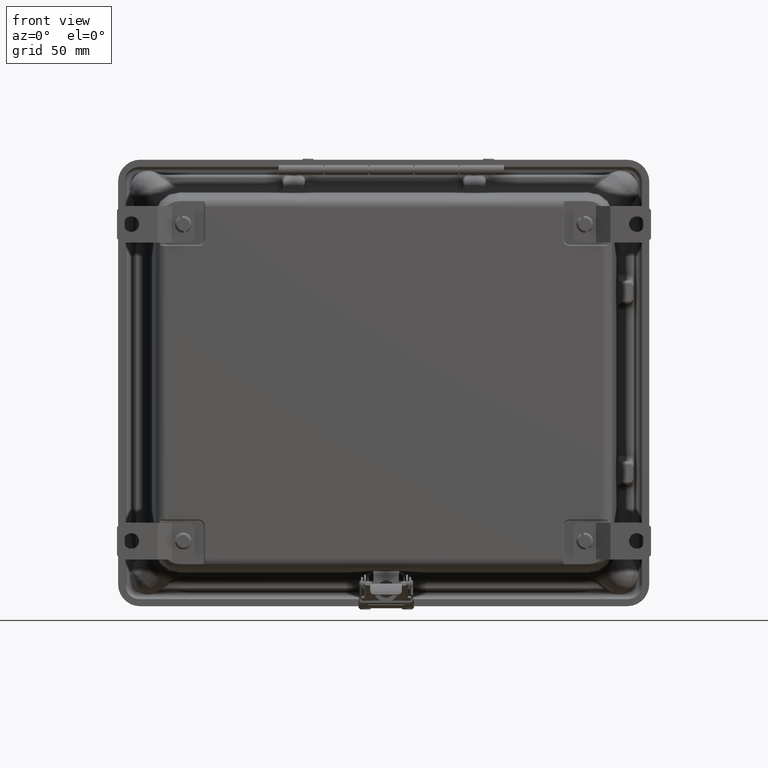
[diagram: clean part render]
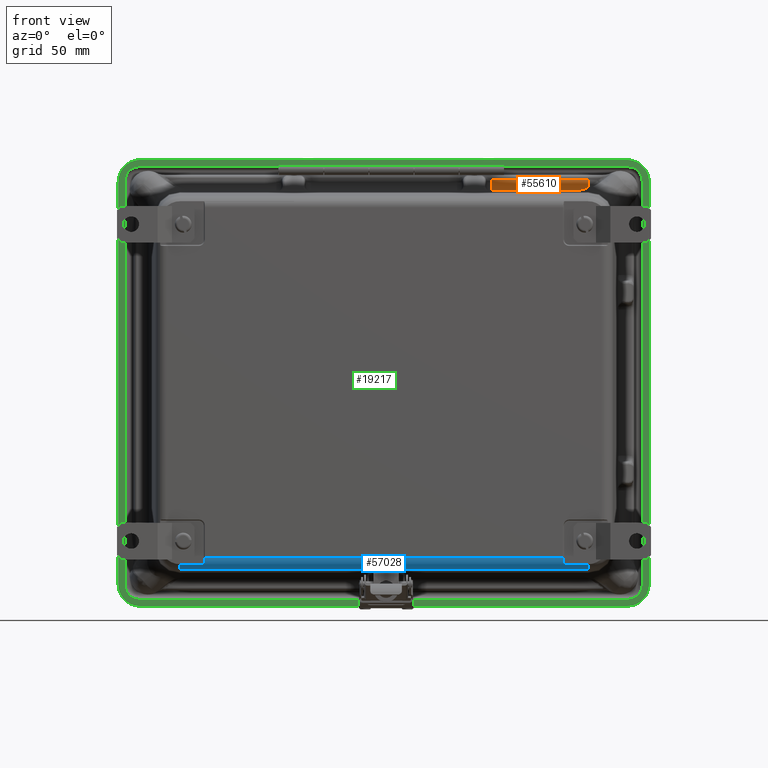
[diagram: same view with three faces highlighted in distinct colors, each labeled with its STEP entity id]
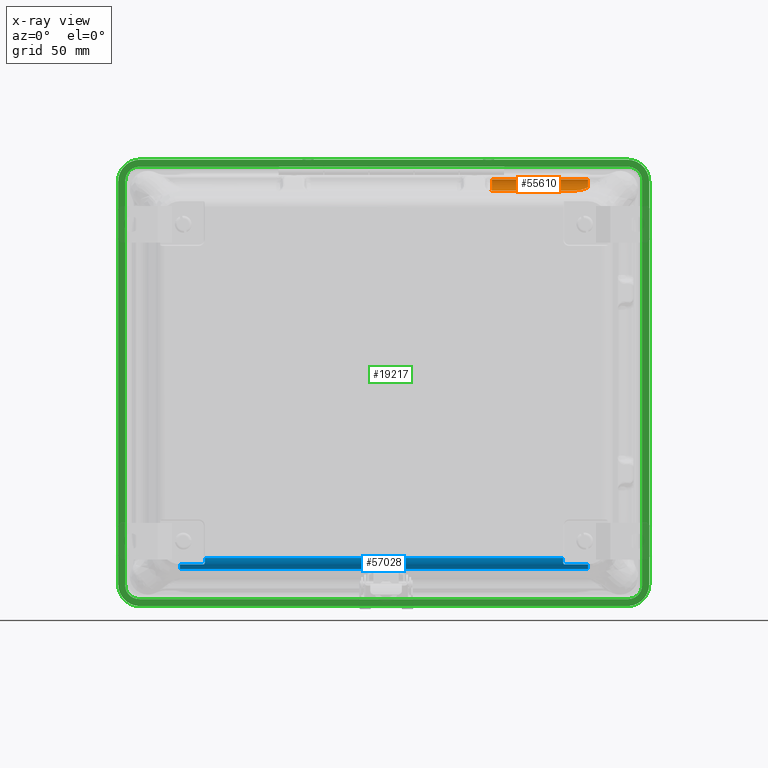
[diagram: x-ray of the same camera — body ghosted, the three highlighted faces saturated]
A machine part, front view with three faces highlighted in distinct colors.
The next image is the same camera in x-ray (body ghosted, the three faces saturated) — at least one of them is partly hidden behind the body in this view.
Their STEP definitions:

[orange] entity #55610 — the highlighted cylindrical surface (edge-blend (fillet) strip) has radius 6.3589 mm, axis along (1, 0, 0).
#1982 = EDGE_CURVE ( 'NONE', #11989, #24394, #66930, .T. ) ;
#4552 = B_SPLINE_CURVE_WITH_KNOTS ( 'NONE', 3,
 ( #5024, #48871, #15987, #54406 ),
 .UNSPECIFIED., .F., .F.,
 ( 4, 4 ),
 ( 0.0000000000000000000, 0.001918334017240655400 ),
 .UNSPECIFIED. ) ;
#5024 = CARTESIAN_POINT ( 'NONE',  ( 2.387251081399212300, -0.2470115163949055400, 4.505961326232334600 ) ) ;
#7036 = CARTESIAN_POINT ( 'NONE',  ( 4.323285071409857800, -0.4277656908726251200, 4.263507555557657400 ) ) ;
#8869 = CARTESIAN_POINT ( 'NONE',  ( 4.221400602685365700, -0.4886244273954343800, 4.255763832688103300 ) ) ;
#10345 = VECTOR ( 'NONE', #23937, 39.37007874015748100 ) ;
#11989 = VERTEX_POINT ( 'NONE', #25622 ) ;
#12132 = EDGE_CURVE ( 'NONE', #37180, #67257, #15069, .T. ) ;
#12524 = CARTESIAN_POINT ( 'NONE',  ( 4.472935125097416500, -0.3443413721079094900, 4.305075943794330200 ) ) ;
#12823 = EDGE_CURVE ( 'NONE', #11989, #37180, #4552, .T. ) ;
#13863 = FACE_OUTER_BOUND ( 'NONE', #53444, .T. ) ;
#15069 =( BOUNDED_CURVE ( )  B_SPLINE_CURVE ( 3, ( #36013, #68910, #30546, #41546 ),
 .UNSPECIFIED., .F., .F. ) 
 B_SPLINE_CURVE_WITH_KNOTS ( ( 4, 4 ),
 ( 0.3026571703532392500, 1.535889741755009900 ),
 .UNSPECIFIED. ) 
 CURVE ( )  GEOMETRIC_REPRESENTATION_ITEM ( )  RATIONAL_B_SPLINE_CURVE ( ( 1.000000000000000000, 0.8772265670909403800, 0.8772265670909403800, 1.000000000000000000 ) ) 
 REPRESENTATION_ITEM ( '' )  );
#15472 = ORIENTED_EDGE ( 'NONE', *, *, #1982, .F. ) ;
#15987 = CARTESIAN_POINT ( 'NONE',  ( 2.389949669711748400, -0.2507943706766841400, 4.455669524789429100 ) ) ;
#16575 = CARTESIAN_POINT ( 'NONE',  ( 2.389817039119166900, -0.2583904571611491700, 4.431342593003362800 ) ) ;
#16949 = DIRECTION ( 'NONE',  ( 0.0000000000000000000, 0.0000000000000000000, -1.000000000000000000 ) ) ;
#18181 = CARTESIAN_POINT ( 'NONE',  ( -4.522359172583527700, -0.4886244273954343800, 4.255763832688103300 ) ) ;
#19023 = VERTEX_POINT ( 'NONE', #22060 ) ;
#20982 = CARTESIAN_POINT ( 'NONE',  ( 5.233279627416470300, -0.2470115163949055400, 4.505961326232334600 ) ) ;
#22060 = CARTESIAN_POINT ( 'NONE',  ( 4.522285627416471800, -0.3208723726247924000, 4.328403716901469500 ) ) ;
#22768 = VERTEX_POINT ( 'NONE', #8869 ) ;
#23087 = DIRECTION ( 'NONE',  ( 1.000000000000000000, -0.0000000000000000000, 0.0000000000000000000 ) ) ;
#23937 = DIRECTION ( 'NONE',  ( -1.000000000000000000, -0.0000000000000000000, -0.0000000000000000000 ) ) ;
#24394 = VERTEX_POINT ( 'NONE', #26557 ) ;
#25622 = CARTESIAN_POINT ( 'NONE',  ( 2.387251081399212300, -0.2470115163949055400, 4.505961326232334600 ) ) ;
#26557 = CARTESIAN_POINT ( 'NONE',  ( 4.522285627416471800, -0.2470115163949055400, 4.505961326232334600 ) ) ;
#26623 = VECTOR ( 'NONE', #59394, 39.37007874015748100 ) ;
#27383 = CARTESIAN_POINT ( 'NONE',  ( 2.385797065417306900, -0.4886244273954343800, 4.255763832688103300 ) ) ;
#28593 = CARTESIAN_POINT ( 'NONE',  ( 4.272295221036932500, -0.4581270703436111100, 4.256828823863817700 ) ) ;
#29231 = EDGE_CURVE ( 'NONE', #19023, #24394, #51763, .T. ) ;
#30546 = CARTESIAN_POINT ( 'NONE',  ( 2.387716928818761600, -0.3786690381300651400, 4.259603559491015500 ) ) ;
#35371 = AXIS2_PLACEMENT_3D ( 'NONE', #66837, #61321, #16949 ) ;
#36013 = CARTESIAN_POINT ( 'NONE',  ( 2.389817039119166900, -0.2583904571611491700, 4.431342593003362800 ) ) ;
#37180 = VERTEX_POINT ( 'NONE', #16575 ) ;
#37237 = ORIENTED_EDGE ( 'NONE', *, *, #46193, .T. ) ;
#41329 = CYLINDRICAL_SURFACE ( 'NONE', #35371, 0.2503500000000002400 ) ;
#41460 = ORIENTED_EDGE ( 'NONE', *, *, #58060, .F. ) ;
#41546 = CARTESIAN_POINT ( 'NONE',  ( 2.385797065417306900, -0.4886244273954343800, 4.255763832688103300 ) ) ;
#42204 = ORIENTED_EDGE ( 'NONE', *, *, #29231, .T. ) ;
#45360 = CARTESIAN_POINT ( 'NONE',  ( 4.423496309789248600, -0.3709718351022674400, 4.287665521629401500 ) ) ;
#46193 = EDGE_CURVE ( 'NONE', #22768, #19023, #54706, .T. ) ;
#48871 = CARTESIAN_POINT ( 'NONE',  ( 2.389155183302506200, -0.2470115163949055400, 4.480546071914156800 ) ) ;
#50880 = CARTESIAN_POINT ( 'NONE',  ( 4.522285627416471800, -0.3208723726247924000, 4.328403716901469500 ) ) ;
#51763 = CIRCLE ( 'NONE', #68097, 0.2503500000000002400 ) ;
#53444 = EDGE_LOOP ( 'NONE', ( #41460, #37237, #42204, #15472, #70323, #53964 ) ) ;
#53964 = ORIENTED_EDGE ( 'NONE', *, *, #12132, .T. ) ;
#54104 = LINE ( 'NONE', #18181, #10345 ) ;
#54406 = CARTESIAN_POINT ( 'NONE',  ( 2.389817039119166900, -0.2583904571611491700, 4.431342593003362800 ) ) ;
#54706 = B_SPLINE_CURVE_WITH_KNOTS ( 'NONE', 3,
 ( #56153, #28593, #7036, #45360, #12524, #50880 ),
 .UNSPECIFIED., .F., .F.,
 ( 4, 2, 4 ),
 ( -3.096646515164228200E-005, 0.004490900834559726800, 0.009012768134271096800 ),
 .UNSPECIFIED. ) ;
#55610 = ADVANCED_FACE ( 'NONE', ( #13863 ), #41329, .F. ) ;
#55987 = CARTESIAN_POINT ( 'NONE',  ( 4.522285627416471800, -0.4973615163949055600, 4.505961326232334600 ) ) ;
#56153 = CARTESIAN_POINT ( 'NONE',  ( 4.221400602685365700, -0.4886244273954343800, 4.255763832688103300 ) ) ;
#58060 = EDGE_CURVE ( 'NONE', #22768, #67257, #54104, .T. ) ;
#59394 = DIRECTION ( 'NONE',  ( 1.000000000000000000, 0.0000000000000000000, -0.0000000000000000000 ) ) ;
#61321 = DIRECTION ( 'NONE',  ( 1.000000000000000000, 0.0000000000000000000, -0.0000000000000000000 ) ) ;
#61508 = DIRECTION ( 'NONE',  ( 0.0000000000000000000, 0.0000000000000000000, -1.000000000000000000 ) ) ;
#66837 = CARTESIAN_POINT ( 'NONE',  ( 5.233279627416470300, -0.4973615163949055600, 4.505961326232334600 ) ) ;
#66930 = LINE ( 'NONE', #20982, #26623 ) ;
#67257 = VERTEX_POINT ( 'NONE', #27383 ) ;
#68097 = AXIS2_PLACEMENT_3D ( 'NONE', #55987, #23087, #61508 ) ;
#68910 = CARTESIAN_POINT ( 'NONE',  ( 2.389244460341659200, -0.2911834789554696400, 4.326320934037141800 ) ) ;
#70323 = ORIENTED_EDGE ( 'NONE', *, *, #12823, .T. ) ;

[blue] entity #57028 — the highlighted cylindrical surface (edge-blend (fillet) strip) has radius 6.3589 mm, axis along (-1, 0, 0).
#618 = CARTESIAN_POINT ( 'NONE',  ( 4.522285627416470900, -4.084710116394905600, -4.026878123927109400 ) ) ;
#3130 = CARTESIAN_POINT ( 'NONE',  ( 4.522285627416470900, -3.877086516394905800, -3.886994017528132800 ) ) ;
#3924 = CARTESIAN_POINT ( 'NONE',  ( 3.968372045334403400, -4.113048217125665900, -3.970927426404077500 ) ) ;
#3988 = DIRECTION ( 'NONE',  ( 0.0000000000000000000, 0.0000000000000000000, 1.000000000000000000 ) ) ;
#4495 = CARTESIAN_POINT ( 'NONE',  ( -3.967265453245076000, -4.127436516394905800, -3.886994017528132800 ) ) ;
#4711 = EDGE_CURVE ( 'NONE', #36370, #61080, #52121, .T. ) ;
#7028 = CIRCLE ( 'NONE', #19264, 0.2503500000000002400 ) ;
#7065 = CARTESIAN_POINT ( 'NONE',  ( -4.522359172583528600, -4.084710116394905600, -4.026878123927109400 ) ) ;
#7819 = CARTESIAN_POINT ( 'NONE',  ( -4.522359172583528600, -3.885823605394376700, -4.137191511072363600 ) ) ;
#7952 = ORIENTED_EDGE ( 'NONE', *, *, #37433, .F. ) ;
#8450 = ORIENTED_EDGE ( 'NONE', *, *, #29396, .T. ) ;
#8669 = DIRECTION ( 'NONE',  ( 0.0000000000000000000, 0.0000000000000000000, 1.000000000000000000 ) ) ;
#8823 = AXIS2_PLACEMENT_3D ( 'NONE', #50040, #55567, #22656 ) ;
#9382 = CARTESIAN_POINT ( 'NONE',  ( -4.522359172583528600, -3.885823605394376700, -4.137191511072363600 ) ) ;
#9588 = FACE_OUTER_BOUND ( 'NONE', #55531, .T. ) ;
#10660 = CARTESIAN_POINT ( 'NONE',  ( -3.970384958254587400, -4.105403142163406300, -3.989916206149993100 ) ) ;
#11422 = CARTESIAN_POINT ( 'NONE',  ( -3.967265453245076000, -4.127436516394905800, -3.886994017528132800 ) ) ;
#12006 =( BOUNDED_CURVE ( )  B_SPLINE_CURVE ( 3, ( #62030, #18335, #51231, #23862 ),
 .UNSPECIFIED., .F., .F. ) 
 B_SPLINE_CURVE_WITH_KNOTS ( ( 4, 4 ),
 ( 5.968991691712730600, 6.283185307179572900 ),
 .UNSPECIFIED. ) 
 CURVE ( )  GEOMETRIC_REPRESENTATION_ITEM ( )  RATIONAL_B_SPLINE_CURVE ( ( 1.000000000000000000, 0.9917904357860589700, 0.9917904357860589700, 1.000000000000000000 ) ) 
 REPRESENTATION_ITEM ( '' )  );
#12991 = EDGE_CURVE ( 'NONE', #69611, #42997, #12006, .T. ) ;
#13228 = ORIENTED_EDGE ( 'NONE', *, *, #4711, .T. ) ;
#14697 = CARTESIAN_POINT ( 'NONE',  ( 3.986621519269010400, -4.087431692259543500, -4.022764192219213400 ) ) ;
#14837 = DIRECTION ( 'NONE',  ( -1.000000000000000000, 0.0000000000000000000, 0.0000000000000000000 ) ) ;
#15567 = VERTEX_POINT ( 'NONE', #17930 ) ;
#16117 = CARTESIAN_POINT ( 'NONE',  ( -3.974438831769029800, -4.097937459914599700, -4.004939076310933800 ) ) ;
#16664 = CARTESIAN_POINT ( 'NONE',  ( -3.967265453245076000, -4.127436516394905800, -3.913321901417832600 ) ) ;
#16900 = CARTESIAN_POINT ( 'NONE',  ( -3.967603299061901500, -4.123317481347881700, -3.939325574627418300 ) ) ;
#17930 = CARTESIAN_POINT ( 'NONE',  ( -3.968270669994769900, -4.115180857701989000, -3.964364600681851100 ) ) ;
#18335 = CARTESIAN_POINT ( 'NONE',  ( 3.967529753894842900, -4.123317481347881700, -3.939325574627417800 ) ) ;
#18467 = VECTOR ( 'NONE', #55369, 39.37007874015748100 ) ;
#19264 = AXIS2_PLACEMENT_3D ( 'NONE', #69710, #36827, #3988 ) ;
#20176 = CARTESIAN_POINT ( 'NONE',  ( 3.980037379509516100, -4.091711719804476600, -4.015908004577108100 ) ) ;
#20344 = VERTEX_POINT ( 'NONE', #43002 ) ;
#20974 = ORIENTED_EDGE ( 'NONE', *, *, #24717, .T. ) ;
#21615 = CARTESIAN_POINT ( 'NONE',  ( -3.978401577436642800, -4.093290371949486900, -4.013251138994906600 ) ) ;
#21659 = LINE ( 'NONE', #9382, #63735 ) ;
#22383 = CYLINDRICAL_SURFACE ( 'NONE', #8823, 0.2503500000000002400 ) ;
#22424 = VERTEX_POINT ( 'NONE', #32630 ) ;
#22656 = DIRECTION ( 'NONE',  ( 0.0000000000000000000, 0.0000000000000000000, 1.000000000000000000 ) ) ;
#22703 = CARTESIAN_POINT ( 'NONE',  ( -4.522359172583528600, -4.084710116394905600, -4.026878123927109400 ) ) ;
#23862 = CARTESIAN_POINT ( 'NONE',  ( 3.967191908078017800, -4.127436516394905800, -3.886994017528132800 ) ) ;
#24717 = EDGE_CURVE ( 'NONE', #15567, #36370, #60233, .T. ) ;
#25726 = CARTESIAN_POINT ( 'NONE',  ( 3.975513095179465900, -4.096382268545161400, -4.007801165017054900 ) ) ;
#27184 = CARTESIAN_POINT ( 'NONE',  ( -3.984229547930174600, -4.088801834757322100, -4.020633496062203000 ) ) ;
#28310 = EDGE_CURVE ( 'NONE', #52105, #42997, #32011, .T. ) ;
#29163 = EDGE_CURVE ( 'NONE', #52105, #15567, #57552, .T. ) ;
#29396 = EDGE_CURVE ( 'NONE', #20344, #69611, #52274, .T. ) ;
#30290 = VECTOR ( 'NONE', #30974, 39.37007874015748100 ) ;
#30974 = DIRECTION ( 'NONE',  ( 1.000000000000000000, -0.0000000000000000000, -0.0000000000000000000 ) ) ;
#31265 = CARTESIAN_POINT ( 'NONE',  ( 3.971487939953130200, -4.102499492119720000, -3.996118079529441300 ) ) ;
#32011 = LINE ( 'NONE', #36221, #30290 ) ;
#32472 = CARTESIAN_POINT ( 'NONE',  ( -3.968270669994769900, -4.115180857701989000, -3.964364600681851100 ) ) ;
#32630 = CARTESIAN_POINT ( 'NONE',  ( 4.522285627416470900, -3.885823605394376700, -4.137191511072363600 ) ) ;
#32703 = CARTESIAN_POINT ( 'NONE',  ( -3.992533810304742300, -4.085370962386411600, -4.025904787363499400 ) ) ;
#36221 = CARTESIAN_POINT ( 'NONE',  ( -4.522359172583528600, -4.127436516394905800, -3.886994017528132800 ) ) ;
#36370 = VERTEX_POINT ( 'NONE', #65308 ) ;
#36754 = CARTESIAN_POINT ( 'NONE',  ( 3.967191908078017800, -4.127436516394905800, -3.886994017528132800 ) ) ;
#36780 = CARTESIAN_POINT ( 'NONE',  ( 3.968754159535043100, -4.110658020149232400, -3.977359338832756800 ) ) ;
#36827 = DIRECTION ( 'NONE',  ( -1.000000000000000000, -0.0000000000000000000, 0.0000000000000000000 ) ) ;
#36949 = VERTEX_POINT ( 'NONE', #7819 ) ;
#37433 = EDGE_CURVE ( 'NONE', #22424, #36949, #21659, .T. ) ;
#38196 = CARTESIAN_POINT ( 'NONE',  ( -3.999445337828178500, -4.084710116394905600, -4.026878123927109400 ) ) ;
#41492 = DIRECTION ( 'NONE',  ( -1.000000000000000000, -0.0000000000000000000, 0.0000000000000000000 ) ) ;
#42042 = CARTESIAN_POINT ( 'NONE',  ( 3.999371792661120800, -4.084710116394905600, -4.026878123927109400 ) ) ;
#42280 = CARTESIAN_POINT ( 'NONE',  ( 3.968197124827712100, -4.115180857701989000, -3.964364600681851100 ) ) ;
#42997 = VERTEX_POINT ( 'NONE', #36754 ) ;
#43002 = CARTESIAN_POINT ( 'NONE',  ( 3.999371792661120800, -4.084710116394905600, -4.026878123927109400 ) ) ;
#43491 = CARTESIAN_POINT ( 'NONE',  ( -3.968827791225029600, -4.110658606856012500, -3.977357378857026200 ) ) ;
#44781 = EDGE_CURVE ( 'NONE', #65623, #20344, #58816, .T. ) ;
#46524 = CIRCLE ( 'NONE', #52386, 0.2503500000000002400 ) ;
#46965 = ORIENTED_EDGE ( 'NONE', *, *, #28310, .F. ) ;
#47550 = CARTESIAN_POINT ( 'NONE',  ( 3.992438841457620400, -4.085375919333738000, -4.025897429900028100 ) ) ;
#48083 = ORIENTED_EDGE ( 'NONE', *, *, #44781, .T. ) ;
#49000 = CARTESIAN_POINT ( 'NONE',  ( -3.971550898963258600, -4.102518809127967200, -3.996079389931518600 ) ) ;
#50040 = CARTESIAN_POINT ( 'NONE',  ( -4.522359172583528600, -3.877086516394905800, -3.886994017528132800 ) ) ;
#50387 = VECTOR ( 'NONE', #62084, 39.37007874015748100 ) ;
#51231 = CARTESIAN_POINT ( 'NONE',  ( 3.967191908078016900, -4.127436516394905800, -3.913321901417832200 ) ) ;
#51355 = ORIENTED_EDGE ( 'NONE', *, *, #64512, .T. ) ;
#51967 = ORIENTED_EDGE ( 'NONE', *, *, #29163, .T. ) ;
#52105 = VERTEX_POINT ( 'NONE', #4495 ) ;
#52121 = LINE ( 'NONE', #22703, #50387 ) ;
#52274 = B_SPLINE_CURVE_WITH_KNOTS ( 'NONE', 3,
 ( #42042, #63640, #47550, #14697, #53097, #20176, #58604, #25726, #64100, #31265, #69659, #36780, #3924, #42280 ),
 .UNSPECIFIED., .F., .F.,
 ( 4, 2, 2, 2, 2, 2, 4 ),
 ( 0.0000000000000000000, 0.0002675940815743780700, 0.0005351881631487561400, 0.0008027822447231341600, 0.001070376326297512300, 0.001605564489446323000, 0.002140752652595133900 ),
 .UNSPECIFIED. ) ;
#52386 = AXIS2_PLACEMENT_3D ( 'NONE', #3130, #41492, #8669 ) ;
#53097 = CARTESIAN_POINT ( 'NONE',  ( 3.984149444980884100, -4.088807055668699100, -4.020624879401716500 ) ) ;
#54527 = CARTESIAN_POINT ( 'NONE',  ( -3.975583290454688600, -4.096386820183875300, -4.007792794988036500 ) ) ;
#55287 = CARTESIAN_POINT ( 'NONE',  ( -3.968270669994769900, -4.115180857701989000, -3.964364600681851100 ) ) ;
#55369 = DIRECTION ( 'NONE',  ( -1.000000000000000000, 0.0000000000000000000, 0.0000000000000000000 ) ) ;
#55531 = EDGE_LOOP ( 'NONE', ( #51967, #20974, #13228, #60378, #7952, #51355, #48083, #8450, #62184, #46965 ) ) ;
#55567 = DIRECTION ( 'NONE',  ( -1.000000000000000000, 0.0000000000000000000, 0.0000000000000000000 ) ) ;
#55820 = EDGE_CURVE ( 'NONE', #36949, #61080, #7028, .T. ) ;
#57028 = ADVANCED_FACE ( 'NONE', ( #9588 ), #22383, .T. ) ;
#57552 =( BOUNDED_CURVE ( )  B_SPLINE_CURVE ( 3, ( #11422, #16664, #16900, #55287 ),
 .UNSPECIFIED., .F., .F. ) 
 B_SPLINE_CURVE_WITH_KNOTS ( ( 4, 4 ),
 ( 3.141592653589806000, 3.455786269056650100 ),
 .UNSPECIFIED. ) 
 CURVE ( )  GEOMETRIC_REPRESENTATION_ITEM ( )  RATIONAL_B_SPLINE_CURVE ( ( 1.000000000000000000, 0.9917904357860589700, 0.9917904357860589700, 1.000000000000000000 ) ) 
 REPRESENTATION_ITEM ( '' )  );
#58604 = CARTESIAN_POINT ( 'NONE',  ( 3.978336949743146900, -4.093281449242908800, -4.013266519706572700 ) ) ;
#58816 = LINE ( 'NONE', #66164, #18467 ) ;
#60032 = CARTESIAN_POINT ( 'NONE',  ( -3.980094674549291300, -4.091723788536341100, -4.015888267438052500 ) ) ;
#60233 = B_SPLINE_CURVE_WITH_KNOTS ( 'NONE', 3,
 ( #32472, #65300, #43491, #10660, #49000, #16117, #54527, #21615, #60032, #27184, #65531, #32703, #71113, #38196 ),
 .UNSPECIFIED., .F., .F.,
 ( 4, 2, 2, 2, 2, 2, 4 ),
 ( 0.0000000000000000000, 0.0005220647425910642000, 0.001044129485182128400, 0.001305161856477678300, 0.001566194227773227900, 0.001827226599068777800, 0.002088258970364327500 ),
 .UNSPECIFIED. ) ;
#60378 = ORIENTED_EDGE ( 'NONE', *, *, #55820, .F. ) ;
#61080 = VERTEX_POINT ( 'NONE', #7065 ) ;
#62030 = CARTESIAN_POINT ( 'NONE',  ( 3.968197124827712100, -4.115180857701989000, -3.964364600681851100 ) ) ;
#62084 = DIRECTION ( 'NONE',  ( -1.000000000000000000, 0.0000000000000000000, 0.0000000000000000000 ) ) ;
#62184 = ORIENTED_EDGE ( 'NONE', *, *, #12991, .T. ) ;
#63640 = CARTESIAN_POINT ( 'NONE',  ( 3.995856835648660800, -4.084710116394906400, -4.026878123927110300 ) ) ;
#63735 = VECTOR ( 'NONE', #14837, 39.37007874015748100 ) ;
#64100 = CARTESIAN_POINT ( 'NONE',  ( 3.974370060066448200, -4.097931155713418100, -4.004950597643329500 ) ) ;
#64512 = EDGE_CURVE ( 'NONE', #22424, #65623, #46524, .T. ) ;
#65300 = CARTESIAN_POINT ( 'NONE',  ( -3.968445596322141400, -4.113048146159618700, -3.970927644789583200 ) ) ;
#65308 = CARTESIAN_POINT ( 'NONE',  ( -3.999445337828178500, -4.084710116394905600, -4.026878123927109400 ) ) ;
#65531 = CARTESIAN_POINT ( 'NONE',  ( -3.986718604310971200, -4.087420779753558400, -4.022781020130056900 ) ) ;
#65623 = VERTEX_POINT ( 'NONE', #618 ) ;
#66164 = CARTESIAN_POINT ( 'NONE',  ( -4.522359172583528600, -4.084710116394905600, -4.026878123927109400 ) ) ;
#69611 = VERTEX_POINT ( 'NONE', #70272 ) ;
#69659 = CARTESIAN_POINT ( 'NONE',  ( 3.970313311533076200, -4.105397614623073300, -3.989928856559402400 ) ) ;
#69710 = CARTESIAN_POINT ( 'NONE',  ( -4.522359172583528600, -3.877086516394905800, -3.886994017528132800 ) ) ;
#70272 = CARTESIAN_POINT ( 'NONE',  ( 3.968197124827712100, -4.115180857701989000, -3.964364600681851100 ) ) ;
#71113 = CARTESIAN_POINT ( 'NONE',  ( -3.995929163139128300, -4.084710116394907300, -4.026878123927109400 ) ) ;

[green] entity #19217 — the highlighted planar face has unit normal (0, 1, 0).
#765 = VERTEX_POINT ( 'NONE', #66567 ) ;
#1037 = ORIENTED_EDGE ( 'NONE', *, *, #14473, .F. ) ;
#1127 = EDGE_CURVE ( 'NONE', #44692, #66422, #31863, .T. ) ;
#1425 = DIRECTION ( 'NONE',  ( -0.0000000000000000000, 1.000000000000000000, -0.0000000000000000000 ) ) ;
#2142 = CARTESIAN_POINT ( 'NONE',  ( 5.886455064928217200, 1.000000000000000200, 4.462000000000000600 ) ) ;
#2461 = CARTESIAN_POINT ( 'NONE',  ( 5.418000000000001000, 1.000000000000000200, 4.793000000000000100 ) ) ;
#2671 = ORIENTED_EDGE ( 'NONE', *, *, #31888, .F. ) ;
#3479 = CARTESIAN_POINT ( 'NONE',  ( -5.886455064928217200, 1.000000000000000200, -4.462000000000000600 ) ) ;
#3621 = DIRECTION ( 'NONE',  ( -0.0000000000000000000, 1.000000000000000000, -0.0000000000000000000 ) ) ;
#4126 = CIRCLE ( 'NONE', #28396, 0.3120000000000009400 ) ;
#5167 = CARTESIAN_POINT ( 'NONE',  ( -5.400000000000000400, 1.000000000000000200, 4.948455064928218400 ) ) ;
#5209 = CARTESIAN_POINT ( 'NONE',  ( 5.418000000000000100, 1.000000000000000200, -4.792999999999999300 ) ) ;
#5210 = CARTESIAN_POINT ( 'NONE',  ( -5.417999999999997500, 1.000000000000000200, 4.793000000000001900 ) ) ;
#6062 = EDGE_CURVE ( 'NONE', #41720, #42458, #42539, .T. ) ;
#6296 = LINE ( 'NONE', #20573, #62928 ) ;
#7381 = FACE_BOUND ( 'NONE', #40491, .T. ) ;
#8045 = EDGE_CURVE ( 'NONE', #68135, #35035, #6296, .T. ) ;
#8663 = ORIENTED_EDGE ( 'NONE', *, *, #64850, .T. ) ;
#9480 = VECTOR ( 'NONE', #47081, 39.37007874015748100 ) ;
#10847 = VECTOR ( 'NONE', #30006, 39.37007874015748100 ) ;
#11563 = VECTOR ( 'NONE', #15896, 39.37007874015748100 ) ;
#12531 = LINE ( 'NONE', #13665, #10847 ) ;
#12642 = AXIS2_PLACEMENT_3D ( 'NONE', #57559, #24661, #63073 ) ;
#13665 = CARTESIAN_POINT ( 'NONE',  ( -5.730000000000000400, 1.000000000000000200, -4.480999999999998100 ) ) ;
#13980 = CARTESIAN_POINT ( 'NONE',  ( 5.730000000000000400, 1.000000000000000200, -4.480999999999998100 ) ) ;
#14473 = EDGE_CURVE ( 'NONE', #66422, #66104, #24848, .T. ) ;
#14730 = VECTOR ( 'NONE', #57251, 39.37007874015748100 ) ;
#15896 = DIRECTION ( 'NONE',  ( -1.000000000000000000, 0.0000000000000000000, 0.0000000000000000000 ) ) ;
#16124 = CARTESIAN_POINT ( 'NONE',  ( -5.730000000000000400, 1.000000000000000200, -4.480999999999998100 ) ) ;
#16480 = LINE ( 'NONE', #24897, #69718 ) ;
#16923 = VERTEX_POINT ( 'NONE', #45561 ) ;
#17221 = VECTOR ( 'NONE', #32006, 39.37007874015748100 ) ;
#17329 = CARTESIAN_POINT ( 'NONE',  ( 5.418000000000001000, 1.000000000000000200, 4.481000000000001600 ) ) ;
#17633 = DIRECTION ( 'NONE',  ( -0.0000000000000000000, 1.000000000000000000, 0.0000000000000000000 ) ) ;
#18841 = CARTESIAN_POINT ( 'NONE',  ( -5.886455064928217200, 1.000000000000000200, -4.462000000000000600 ) ) ;
#19087 = AXIS2_PLACEMENT_3D ( 'NONE', #51810, #62590, #62827 ) ;
#19217 = ADVANCED_FACE ( 'NONE', ( #7381, #65712 ), #24424, .F. ) ;
#19912 = CARTESIAN_POINT ( 'NONE',  ( -5.400000000000000400, 1.000000000000000200, 4.461999999999999700 ) ) ;
#20225 = VERTEX_POINT ( 'NONE', #2461 ) ;
#20475 = AXIS2_PLACEMENT_3D ( 'NONE', #19912, #58341, #25455 ) ;
#20573 = CARTESIAN_POINT ( 'NONE',  ( -5.400000000000000400, 1.000000000000000200, 4.948455064928218400 ) ) ;
#20819 = LINE ( 'NONE', #43059, #50021 ) ;
#21249 = CARTESIAN_POINT ( 'NONE',  ( -5.730000000000000400, 1.000000000000000200, 4.481000000000001600 ) ) ;
#22305 = ORIENTED_EDGE ( 'NONE', *, *, #47945, .T. ) ;
#22825 = DIRECTION ( 'NONE',  ( 0.0000000000000000000, 0.0000000000000000000, -1.000000000000000000 ) ) ;
#24014 = LINE ( 'NONE', #25002, #9480 ) ;
#24151 = ORIENTED_EDGE ( 'NONE', *, *, #55279, .F. ) ;
#24424 = PLANE ( 'NONE',  #19087 ) ;
#24661 = DIRECTION ( 'NONE',  ( -0.0000000000000000000, 1.000000000000000000, 0.0000000000000000000 ) ) ;
#24848 = CIRCLE ( 'NONE', #45053, 0.3120000000000003900 ) ;
#24897 = CARTESIAN_POINT ( 'NONE',  ( -5.417999999999997500, 1.000000000000000200, 4.793000000000001900 ) ) ;
#25002 = CARTESIAN_POINT ( 'NONE',  ( 5.886455064928218100, 1.000000000000000200, -4.462000000000000600 ) ) ;
#25455 = DIRECTION ( 'NONE',  ( 0.0000000000000000000, 0.0000000000000000000, -1.000000000000000000 ) ) ;
#25576 = EDGE_CURVE ( 'NONE', #765, #39252, #45109, .T. ) ;
#26107 = ORIENTED_EDGE ( 'NONE', *, *, #25576, .T. ) ;
#26726 = CARTESIAN_POINT ( 'NONE',  ( -5.417999999999997500, 1.000000000000000200, 4.481000000000000800 ) ) ;
#27656 = CARTESIAN_POINT ( 'NONE',  ( 5.399999999999999500, 1.000000000000000200, -4.948455064928217500 ) ) ;
#28396 = AXIS2_PLACEMENT_3D ( 'NONE', #26726, #65094, #32262 ) ;
#30006 = DIRECTION ( 'NONE',  ( 0.0000000000000000000, 0.0000000000000000000, 1.000000000000000000 ) ) ;
#30498 = CARTESIAN_POINT ( 'NONE',  ( 5.400000000000002100, 1.000000000000000200, 4.462000000000000600 ) ) ;
#31863 = LINE ( 'NONE', #48286, #17221 ) ;
#31888 = EDGE_CURVE ( 'NONE', #44021, #70620, #42728, .T. ) ;
#32006 = DIRECTION ( 'NONE',  ( -2.438605662721948800E-016, 0.0000000000000000000, -1.000000000000000000 ) ) ;
#32262 = DIRECTION ( 'NONE',  ( 0.0000000000000000000, 0.0000000000000000000, -1.000000000000000000 ) ) ;
#32878 = CARTESIAN_POINT ( 'NONE',  ( -5.400000000000002100, 1.000000000000000200, -4.948455064928217500 ) ) ;
#33565 = EDGE_CURVE ( 'NONE', #70620, #42148, #12531, .T. ) ;
#33904 = ORIENTED_EDGE ( 'NONE', *, *, #33565, .F. ) ;
#34304 = CARTESIAN_POINT ( 'NONE',  ( 5.399999999999999500, 1.000000000000000200, -4.462000000000000600 ) ) ;
#35035 = VERTEX_POINT ( 'NONE', #53807 ) ;
#35641 = ORIENTED_EDGE ( 'NONE', *, *, #45555, .F. ) ;
#35980 = DIRECTION ( 'NONE',  ( 0.0000000000000000000, 0.0000000000000000000, -1.000000000000000000 ) ) ;
#36469 = CARTESIAN_POINT ( 'NONE',  ( -5.400000000000002100, 1.000000000000000200, -4.462000000000001500 ) ) ;
#39252 = VERTEX_POINT ( 'NONE', #27656 ) ;
#39591 = EDGE_LOOP ( 'NONE', ( #49140, #8663, #54865, #53013, #65854, #52147, #26107, #22305 ) ) ;
#39818 = DIRECTION ( 'NONE',  ( 0.0000000000000000000, 0.0000000000000000000, -1.000000000000000000 ) ) ;
#40435 = VERTEX_POINT ( 'NONE', #5210 ) ;
#40491 = EDGE_LOOP ( 'NONE', ( #46814, #33904, #2671, #35641, #1037, #50270, #70721, #24151 ) ) ;
#41503 = EDGE_CURVE ( 'NONE', #16923, #68135, #70357, .T. ) ;
#41720 = VERTEX_POINT ( 'NONE', #32878 ) ;
#41994 = DIRECTION ( 'NONE',  ( 0.0000000000000000000, 0.0000000000000000000, -1.000000000000000000 ) ) ;
#42148 = VERTEX_POINT ( 'NONE', #21249 ) ;
#42458 = VERTEX_POINT ( 'NONE', #3479 ) ;
#42539 = CIRCLE ( 'NONE', #66180, 0.4864550649282170500 ) ;
#42595 = EDGE_CURVE ( 'NONE', #42148, #40435, #4126, .T. ) ;
#42728 = CIRCLE ( 'NONE', #12642, 0.3120000000000003900 ) ;
#43059 = CARTESIAN_POINT ( 'NONE',  ( -5.400000000000002100, 1.000000000000000200, -4.948455064928217500 ) ) ;
#43654 = CARTESIAN_POINT ( 'NONE',  ( 5.730000000000002200, 1.000000000000000200, 4.481000000000001600 ) ) ;
#44021 = VERTEX_POINT ( 'NONE', #58620 ) ;
#44692 = VERTEX_POINT ( 'NONE', #43654 ) ;
#45053 = AXIS2_PLACEMENT_3D ( 'NONE', #50513, #17633, #56027 ) ;
#45109 = CIRCLE ( 'NONE', #70565, 0.4864550649282181600 ) ;
#45555 = EDGE_CURVE ( 'NONE', #66104, #44021, #69937, .T. ) ;
#45561 = CARTESIAN_POINT ( 'NONE',  ( -5.886455064928217200, 1.000000000000000200, 4.462000000000000600 ) ) ;
#46380 = EDGE_CURVE ( 'NONE', #35035, #65305, #62957, .T. ) ;
#46814 = ORIENTED_EDGE ( 'NONE', *, *, #42595, .F. ) ;
#47081 = DIRECTION ( 'NONE',  ( -0.0000000000000000000, -0.0000000000000000000, -1.000000000000000000 ) ) ;
#47945 = EDGE_CURVE ( 'NONE', #39252, #41720, #20819, .T. ) ;
#48286 = CARTESIAN_POINT ( 'NONE',  ( 5.730000000000000400, 1.000000000000000200, -4.480999999999998100 ) ) ;
#49140 = ORIENTED_EDGE ( 'NONE', *, *, #6062, .T. ) ;
#49704 = AXIS2_PLACEMENT_3D ( 'NONE', #30498, #68871, #35980 ) ;
#50021 = VECTOR ( 'NONE', #64859, 39.37007874015748100 ) ;
#50270 = ORIENTED_EDGE ( 'NONE', *, *, #1127, .F. ) ;
#50513 = CARTESIAN_POINT ( 'NONE',  ( 5.418000000000000100, 1.000000000000000200, -4.480999999999998100 ) ) ;
#51810 = CARTESIAN_POINT ( 'NONE',  ( -5.400000000000002100, 1.000000000000000200, -4.462000000000001500 ) ) ;
#52147 = ORIENTED_EDGE ( 'NONE', *, *, #66424, .T. ) ;
#53013 = ORIENTED_EDGE ( 'NONE', *, *, #8045, .T. ) ;
#53807 = CARTESIAN_POINT ( 'NONE',  ( 5.400000000000002100, 1.000000000000000200, 4.948455064928215700 ) ) ;
#54865 = ORIENTED_EDGE ( 'NONE', *, *, #41503, .T. ) ;
#55279 = EDGE_CURVE ( 'NONE', #40435, #20225, #16480, .T. ) ;
#55713 = DIRECTION ( 'NONE',  ( -0.0000000000000000000, 1.000000000000000000, 0.0000000000000000000 ) ) ;
#55983 = EDGE_CURVE ( 'NONE', #20225, #44692, #70648, .T. ) ;
#56027 = DIRECTION ( 'NONE',  ( 0.0000000000000000000, 0.0000000000000000000, 1.000000000000000000 ) ) ;
#57251 = DIRECTION ( 'NONE',  ( -0.0000000000000000000, -0.0000000000000000000, 1.000000000000000000 ) ) ;
#57559 = CARTESIAN_POINT ( 'NONE',  ( -5.418000000000000100, 1.000000000000000200, -4.480999999999999900 ) ) ;
#58341 = DIRECTION ( 'NONE',  ( -0.0000000000000000000, 1.000000000000000000, -0.0000000000000000000 ) ) ;
#58620 = CARTESIAN_POINT ( 'NONE',  ( -5.418000000000000100, 1.000000000000000200, -4.792999999999999300 ) ) ;
#60239 = LINE ( 'NONE', #18841, #14730 ) ;
#62590 = DIRECTION ( 'NONE',  ( 0.0000000000000000000, -1.000000000000000000, 0.0000000000000000000 ) ) ;
#62827 = DIRECTION ( 'NONE',  ( 0.0000000000000000000, 0.0000000000000000000, -1.000000000000000000 ) ) ;
#62928 = VECTOR ( 'NONE', #69811, 39.37007874015748100 ) ;
#62957 = CIRCLE ( 'NONE', #49704, 0.4864550649282159400 ) ;
#63073 = DIRECTION ( 'NONE',  ( 0.0000000000000000000, 0.0000000000000000000, -1.000000000000000000 ) ) ;
#63316 = DIRECTION ( 'NONE',  ( 1.000000000000000000, -0.0000000000000000000, 0.0000000000000000000 ) ) ;
#64850 = EDGE_CURVE ( 'NONE', #42458, #16923, #60239, .T. ) ;
#64859 = DIRECTION ( 'NONE',  ( -1.000000000000000000, 0.0000000000000000000, -0.0000000000000000000 ) ) ;
#65094 = DIRECTION ( 'NONE',  ( -0.0000000000000000000, 1.000000000000000000, 0.0000000000000000000 ) ) ;
#65305 = VERTEX_POINT ( 'NONE', #2142 ) ;
#65712 = FACE_OUTER_BOUND ( 'NONE', #39591, .T. ) ;
#65854 = ORIENTED_EDGE ( 'NONE', *, *, #46380, .T. ) ;
#66104 = VERTEX_POINT ( 'NONE', #5209 ) ;
#66180 = AXIS2_PLACEMENT_3D ( 'NONE', #36469, #3621, #41994 ) ;
#66422 = VERTEX_POINT ( 'NONE', #13980 ) ;
#66424 = EDGE_CURVE ( 'NONE', #65305, #765, #24014, .T. ) ;
#66567 = CARTESIAN_POINT ( 'NONE',  ( 5.886455064928217200, 1.000000000000000200, -4.462000000000000600 ) ) ;
#68135 = VERTEX_POINT ( 'NONE', #5167 ) ;
#68871 = DIRECTION ( 'NONE',  ( -0.0000000000000000000, 1.000000000000000000, -0.0000000000000000000 ) ) ;
#69718 = VECTOR ( 'NONE', #63316, 39.37007874015748100 ) ;
#69811 = DIRECTION ( 'NONE',  ( 1.000000000000000000, -0.0000000000000000000, -0.0000000000000000000 ) ) ;
#69937 = LINE ( 'NONE', #70657, #11563 ) ;
#70357 = CIRCLE ( 'NONE', #20475, 0.4864550649282170500 ) ;
#70565 = AXIS2_PLACEMENT_3D ( 'NONE', #34304, #1425, #39818 ) ;
#70620 = VERTEX_POINT ( 'NONE', #16124 ) ;
#70648 = CIRCLE ( 'NONE', #70828, 0.3120000000000009400 ) ;
#70657 = CARTESIAN_POINT ( 'NONE',  ( -5.418000000000000100, 1.000000000000000200, -4.792999999999999300 ) ) ;
#70721 = ORIENTED_EDGE ( 'NONE', *, *, #55983, .F. ) ;
#70828 = AXIS2_PLACEMENT_3D ( 'NONE', #17329, #55713, #22825 ) ;